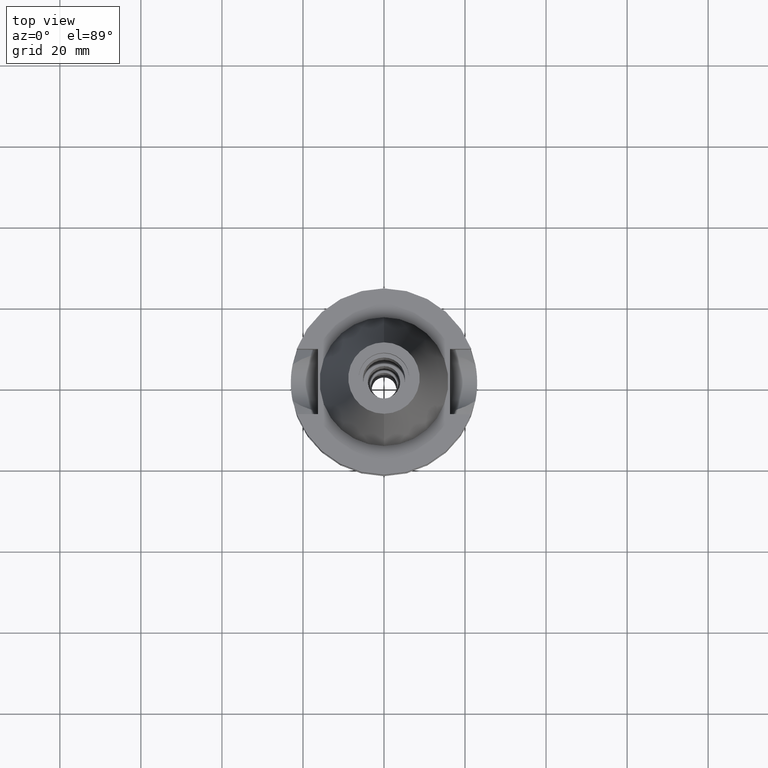
[diagram: clean part render]
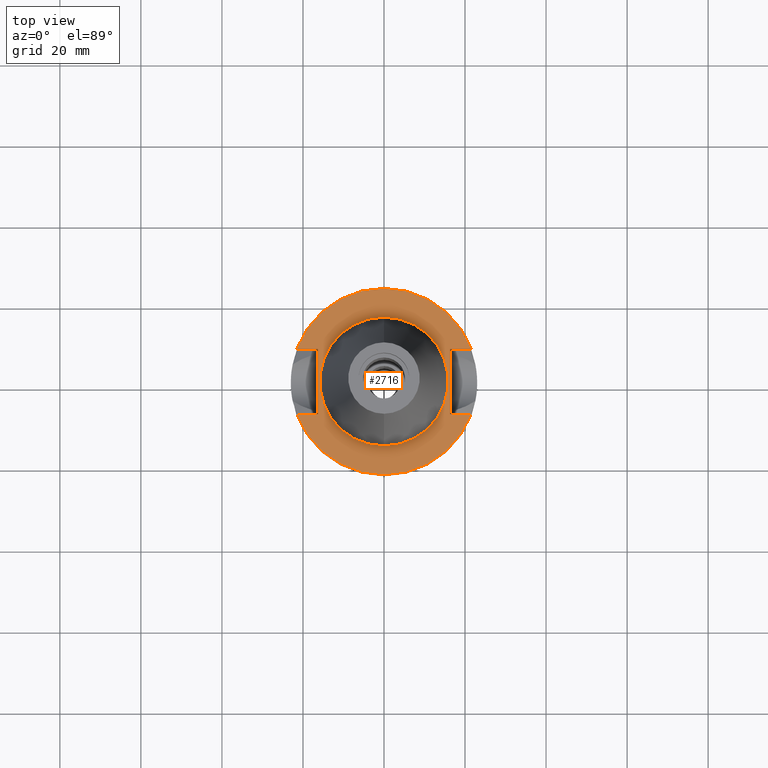
[diagram: same view with one face highlighted and labeled with its STEP entity id]
A machine part, top view. The second image highlights one B-rep face of the part: STEP entity #2716.
In plain terms, the highlighted planar face has unit normal (0, 0, -1).
Its self-contained STEP definition (entity closure, byte-faithful):
#45 = AXIS2_PLACEMENT_3D ( 'NONE', #1190, #1576, #2497 ) ;
#64 = VECTOR ( 'NONE', #1003, 1000.000000000000000 ) ;
#99 = CARTESIAN_POINT ( 'NONE',  ( 16.29999999999999716, 8.050000000000000711, -1.000000000000000000 ) ) ;
#130 = LINE ( 'NONE', #2201, #946 ) ;
#216 = AXIS2_PLACEMENT_3D ( 'NONE', #704, #717, #1573 ) ;
#224 = DIRECTION ( 'NONE',  ( 0.0000000000000000000, 0.0000000000000000000, -1.000000000000000000 ) ) ;
#255 = DIRECTION ( 'NONE',  ( 0.0000000000000000000, -1.000000000000000000, 0.0000000000000000000 ) ) ;
#275 = DIRECTION ( 'NONE',  ( -1.000000000000000000, 9.347030801892000173E-14, 0.0000000000000000000 ) ) ;
#293 = EDGE_CURVE ( 'NONE', #892, #313, #2090, .T. ) ;
#313 = VERTEX_POINT ( 'NONE', #850 ) ;
#341 = DIRECTION ( 'NONE',  ( 0.0000000000000000000, 1.000000000000000000, 0.0000000000000000000 ) ) ;
#342 = CARTESIAN_POINT ( 'NONE',  ( 0.0000000000000000000, 15.87500000000000000, -0.9999999999999000799 ) ) ;
#420 = CARTESIAN_POINT ( 'NONE',  ( 21.54524309446999908, -8.050000000000000711, -1.000000000000000000 ) ) ;
#437 = CARTESIAN_POINT ( 'NONE',  ( 0.0000000000000000000, 1.212400331155999925E-14, -1.000000000000000000 ) ) ;
#467 = FACE_OUTER_BOUND ( 'NONE', #1069, .T. ) ;
#502 = CARTESIAN_POINT ( 'NONE',  ( 16.29999999999999716, -8.050000000000000711, -1.000000000000000000 ) ) ;
#524 = DIRECTION ( 'NONE',  ( 0.0000000000000000000, 0.0000000000000000000, -1.000000000000000000 ) ) ;
#616 = CARTESIAN_POINT ( 'NONE',  ( -16.29999999999999716, -8.050000000000000711, -1.000000000000000000 ) ) ;
#704 = CARTESIAN_POINT ( 'NONE',  ( 0.0000000000000000000, 1.918041816824999936E-14, -0.9999999999999000799 ) ) ;
#717 = DIRECTION ( 'NONE',  ( 0.0000000000000000000, 0.0000000000000000000, 1.000000000000000000 ) ) ;
#735 = EDGE_CURVE ( 'NONE', #2319, #313, #1987, .T. ) ;
#747 = AXIS2_PLACEMENT_3D ( 'NONE', #437, #224, #1145 ) ;
#753 = CARTESIAN_POINT ( 'NONE',  ( 0.0000000000000000000, 1.918041816824999936E-14, -0.9999999999999000799 ) ) ;
#771 = VERTEX_POINT ( 'NONE', #342 ) ;
#839 = DIRECTION ( 'NONE',  ( 1.000000000000000000, -9.347030801892000173E-14, 0.0000000000000000000 ) ) ;
#850 = CARTESIAN_POINT ( 'NONE',  ( -21.54524309446999908, -8.050000000000000711, -1.000000000000000000 ) ) ;
#892 = VERTEX_POINT ( 'NONE', #420 ) ;
#946 = VECTOR ( 'NONE', #839, 1000.000000000000000 ) ;
#970 = CARTESIAN_POINT ( 'NONE',  ( 0.0000000000000000000, -15.87500000000000000, -0.9999999999999000799 ) ) ;
#973 = CARTESIAN_POINT ( 'NONE',  ( -16.29999999999999716, 8.050000000000000711, -1.000000000000000000 ) ) ;
#1003 = DIRECTION ( 'NONE',  ( 0.0000000000000000000, -1.000000000000000000, 0.0000000000000000000 ) ) ;
#1068 = ORIENTED_EDGE ( 'NONE', *, *, #2824, .F. ) ;
#1069 = EDGE_LOOP ( 'NONE', ( #1527, #2081, #1427, #1068, #1147, #1292, #1431, #2066 ) ) ;
#1087 = VERTEX_POINT ( 'NONE', #2267 ) ;
#1116 = VERTEX_POINT ( 'NONE', #2506 ) ;
#1145 = DIRECTION ( 'NONE',  ( 0.0000000000000000000, -1.000000000000000000, 0.0000000000000000000 ) ) ;
#1147 = ORIENTED_EDGE ( 'NONE', *, *, #1566, .T. ) ;
#1184 = LINE ( 'NONE', #2551, #64 ) ;
#1190 = CARTESIAN_POINT ( 'NONE',  ( 0.0000000000000000000, 1.918041816824999936E-14, -0.9999999999999000799 ) ) ;
#1192 = CARTESIAN_POINT ( 'NONE',  ( 16.29999999999999716, 8.050000000000000711, -1.000000000000000000 ) ) ;
#1227 = VECTOR ( 'NONE', #1391, 1000.000000000000000 ) ;
#1286 = VERTEX_POINT ( 'NONE', #2793 ) ;
#1292 = ORIENTED_EDGE ( 'NONE', *, *, #2846, .F. ) ;
#1308 = DIRECTION ( 'NONE',  ( -1.000000000000000000, -9.313164748262000573E-14, 0.0000000000000000000 ) ) ;
#1358 = VECTOR ( 'NONE', #275, 1000.000000000000000 ) ;
#1368 = FACE_BOUND ( 'NONE', #2175, .T. ) ;
#1391 = DIRECTION ( 'NONE',  ( 1.000000000000000000, 9.380896855521999773E-14, 0.0000000000000000000 ) ) ;
#1427 = ORIENTED_EDGE ( 'NONE', *, *, #1435, .F. ) ;
#1431 = ORIENTED_EDGE ( 'NONE', *, *, #2811, .F. ) ;
#1435 = EDGE_CURVE ( 'NONE', #1675, #892, #130, .T. ) ;
#1527 = ORIENTED_EDGE ( 'NONE', *, *, #735, .T. ) ;
#1566 = EDGE_CURVE ( 'NONE', #1916, #1286, #2788, .T. ) ;
#1573 = DIRECTION ( 'NONE',  ( 0.0000000000000000000, -1.000000000000000000, 0.0000000000000000000 ) ) ;
#1576 = DIRECTION ( 'NONE',  ( 0.0000000000000000000, 0.0000000000000000000, 1.000000000000000000 ) ) ;
#1595 = VERTEX_POINT ( 'NONE', #970 ) ;
#1675 = VERTEX_POINT ( 'NONE', #502 ) ;
#1678 = DIRECTION ( 'NONE',  ( 0.0000000000000000000, 1.000000000000000000, 0.0000000000000000000 ) ) ;
#1683 = AXIS2_PLACEMENT_3D ( 'NONE', #2011, #2503, #255 ) ;
#1728 = CIRCLE ( 'NONE', #2687, 23.00000000000000000 ) ;
#1811 = PLANE ( 'NONE',  #747 ) ;
#1881 = EDGE_CURVE ( 'NONE', #2319, #1087, #2823, .T. ) ;
#1916 = VERTEX_POINT ( 'NONE', #99 ) ;
#1954 = CIRCLE ( 'NONE', #45, 15.87500000000000000 ) ;
#1987 = LINE ( 'NONE', #616, #2234 ) ;
#2011 = CARTESIAN_POINT ( 'NONE',  ( 0.0000000000000000000, 1.918041816824999936E-14, -0.9999999999999000799 ) ) ;
#2066 = ORIENTED_EDGE ( 'NONE', *, *, #1881, .F. ) ;
#2081 = ORIENTED_EDGE ( 'NONE', *, *, #293, .F. ) ;
#2090 = CIRCLE ( 'NONE', #1683, 23.00000000000000000 ) ;
#2100 = EDGE_CURVE ( 'NONE', #771, #1595, #1954, .T. ) ;
#2175 = EDGE_LOOP ( 'NONE', ( #2378, #2351 ) ) ;
#2186 = VECTOR ( 'NONE', #1678, 1000.000000000000000 ) ;
#2201 = CARTESIAN_POINT ( 'NONE',  ( 16.29999999999999716, -8.050000000000000711, -1.000000000000000000 ) ) ;
#2234 = VECTOR ( 'NONE', #1308, 1000.000000000000000 ) ;
#2267 = CARTESIAN_POINT ( 'NONE',  ( -16.29999999999999716, 8.050000000000000711, -1.000000000000000000 ) ) ;
#2319 = VERTEX_POINT ( 'NONE', #2819 ) ;
#2351 = ORIENTED_EDGE ( 'NONE', *, *, #2640, .F. ) ;
#2378 = ORIENTED_EDGE ( 'NONE', *, *, #2100, .F. ) ;
#2497 = DIRECTION ( 'NONE',  ( 0.0000000000000000000, 1.000000000000000000, 0.0000000000000000000 ) ) ;
#2503 = DIRECTION ( 'NONE',  ( 0.0000000000000000000, 0.0000000000000000000, -1.000000000000000000 ) ) ;
#2506 = CARTESIAN_POINT ( 'NONE',  ( -21.54524309446999908, 8.050000000000000711, -1.000000000000000000 ) ) ;
#2551 = CARTESIAN_POINT ( 'NONE',  ( 16.29999999999999716, 8.050000000000000711, -1.000000000000000000 ) ) ;
#2627 = CARTESIAN_POINT ( 'NONE',  ( -16.29999999999999716, -8.050000000000000711, -1.000000000000000000 ) ) ;
#2640 = EDGE_CURVE ( 'NONE', #1595, #771, #2746, .T. ) ;
#2687 = AXIS2_PLACEMENT_3D ( 'NONE', #753, #524, #341 ) ;
#2716 = ADVANCED_FACE ( 'NONE', ( #467, #1368 ), #1811, .F. ) ;
#2746 = CIRCLE ( 'NONE', #216, 15.87500000000000000 ) ;
#2788 = LINE ( 'NONE', #1192, #1227 ) ;
#2793 = CARTESIAN_POINT ( 'NONE',  ( 21.54524309446999908, 8.050000000000000711, -0.9999999999999000799 ) ) ;
#2811 = EDGE_CURVE ( 'NONE', #1087, #1116, #2827, .T. ) ;
#2819 = CARTESIAN_POINT ( 'NONE',  ( -16.29999999999999716, -8.050000000000000711, -1.000000000000000000 ) ) ;
#2823 = LINE ( 'NONE', #2627, #2186 ) ;
#2824 = EDGE_CURVE ( 'NONE', #1916, #1675, #1184, .T. ) ;
#2827 = LINE ( 'NONE', #973, #1358 ) ;
#2846 = EDGE_CURVE ( 'NONE', #1116, #1286, #1728, .T. ) ;